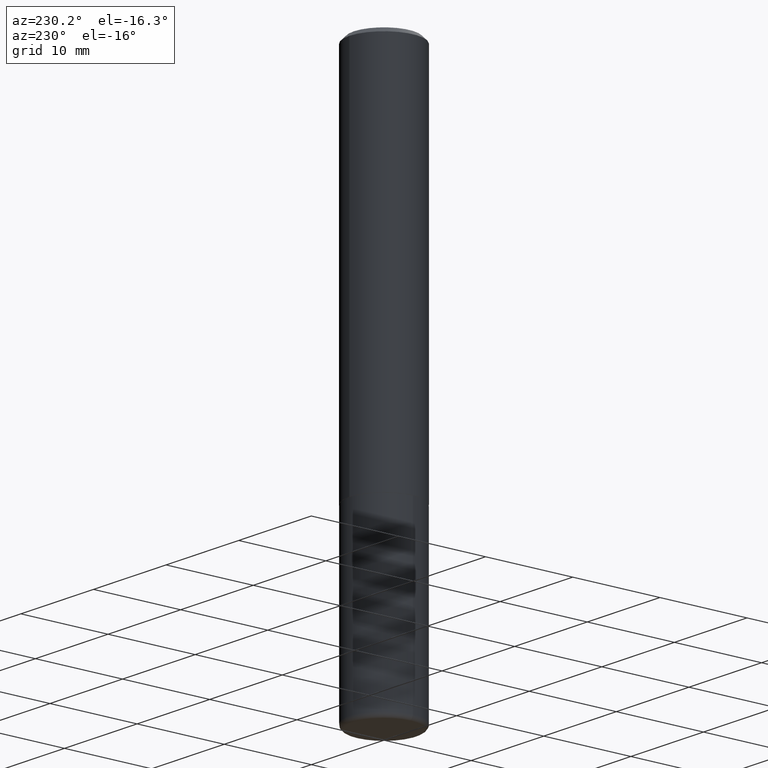
[diagram: clean part render]
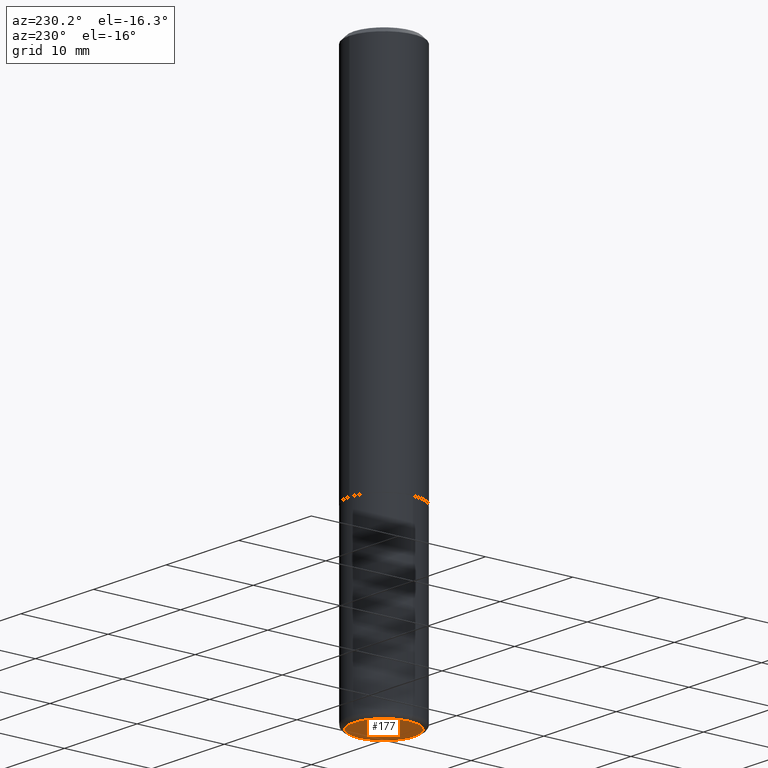
[diagram: same view with one face highlighted and labeled with its STEP entity id]
A machine part, auxiliary view. The second image highlights one B-rep face of the part: STEP entity #177.
In plain terms, the highlighted planar face has unit normal (0, -0, -1).
Its self-contained STEP definition (entity closure, byte-faithful):
#8 = CARTESIAN_POINT ( 'NONE',  ( 6.113672015462842613E-29, -8.728703347107866520E-15, -2.500000000000000444 ) ) ;
#15 = AXIS2_PLACEMENT_3D ( 'NONE', #317, #149, #204 ) ;
#20 = EDGE_CURVE ( 'NONE', #134, #35, #273, .T. ) ;
#35 = VERTEX_POINT ( 'NONE', #400 ) ;
#94 = DIRECTION ( 'NONE',  ( 2.438088387897960049E-29, -3.491481338843145188E-15, -1.000000000000000000 ) ) ;
#113 = AXIS2_PLACEMENT_3D ( 'NONE', #157, #94, #320 ) ;
#127 = FACE_OUTER_BOUND ( 'NONE', #227, .T. ) ;
#134 = VERTEX_POINT ( 'NONE', #174 ) ;
#149 = DIRECTION ( 'NONE',  ( -2.445468806185136597E-29, 3.491481338843145583E-15, 1.000000000000000000 ) ) ;
#157 = CARTESIAN_POINT ( 'NONE',  ( -8.868390233884125479E-30, -1.875383359908681760E-14, -2.500000000000000000 ) ) ;
#174 = CARTESIAN_POINT ( 'NONE',  ( 0.1362500000000000100, -9.680132011942621464E-15, -2.500000000000000444 ) ) ;
#177 = ADVANCED_FACE ( 'NONE', ( #127 ), #185, .T. ) ;
#185 = PLANE ( 'NONE',  #113 ) ;
#204 = DIRECTION ( 'NONE',  ( 1.000000000000000000, -6.982962677686273021E-15, 0.000000000000000000 ) ) ;
#227 = EDGE_LOOP ( 'NONE', ( #340, #314 ) ) ;
#234 = CIRCLE ( 'NONE', #15, 0.1362500000000000100 ) ;
#273 = CIRCLE ( 'NONE', #416, 0.1362500000000000100 ) ;
#310 = DIRECTION ( 'NONE',  ( 1.000000000000000000, -6.982962677686273021E-15, 0.000000000000000000 ) ) ;
#314 = ORIENTED_EDGE ( 'NONE', *, *, #417, .F. ) ;
#317 = CARTESIAN_POINT ( 'NONE',  ( 6.113672015462842613E-29, -8.728703347107866520E-15, -2.500000000000000444 ) ) ;
#320 = DIRECTION ( 'NONE',  ( -1.000000000000000000, 6.982962677686265922E-15, -4.876176775795935793E-29 ) ) ;
#340 = ORIENTED_EDGE ( 'NONE', *, *, #20, .F. ) ;
#368 = DIRECTION ( 'NONE',  ( -2.445468806185136597E-29, 3.491481338843145583E-15, 1.000000000000000000 ) ) ;
#400 = CARTESIAN_POINT ( 'NONE',  ( -0.1362500000000000100, -7.654619782670286835E-15, -2.500000000000000444 ) ) ;
#416 = AXIS2_PLACEMENT_3D ( 'NONE', #8, #368, #310 ) ;
#417 = EDGE_CURVE ( 'NONE', #35, #134, #234, .T. ) ;